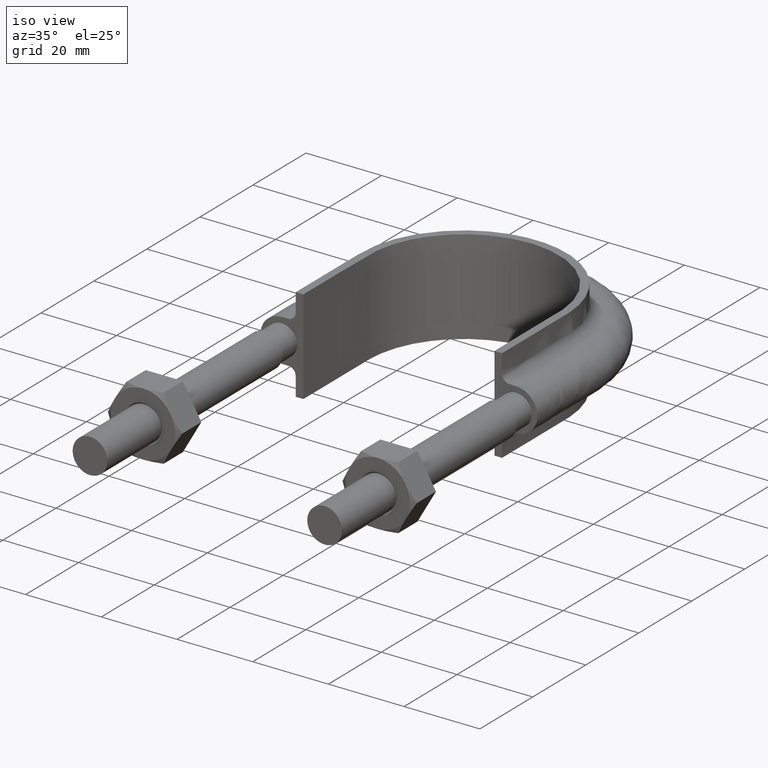
[diagram: clean part render]
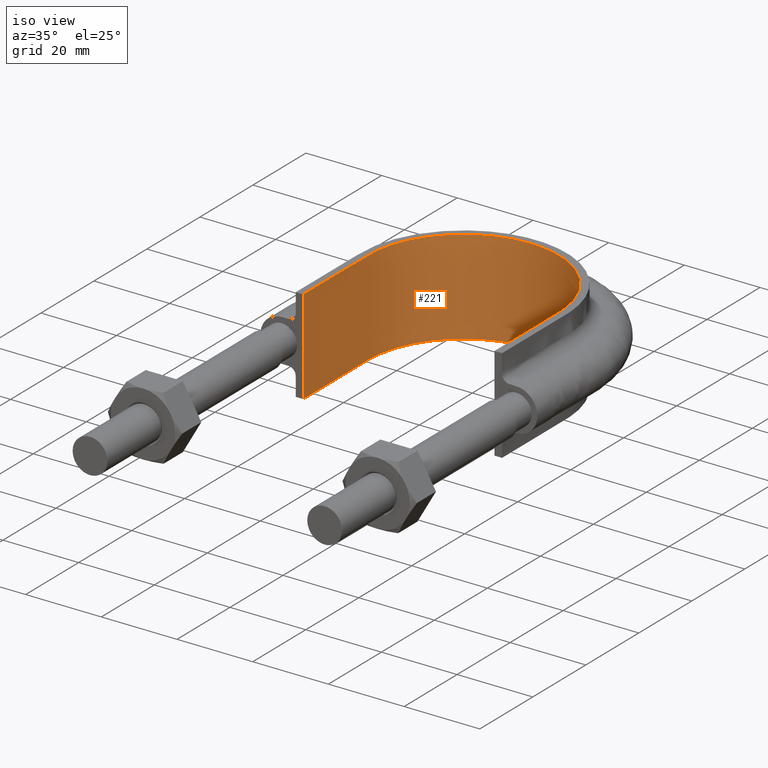
[diagram: same view with one face highlighted and labeled with its STEP entity id]
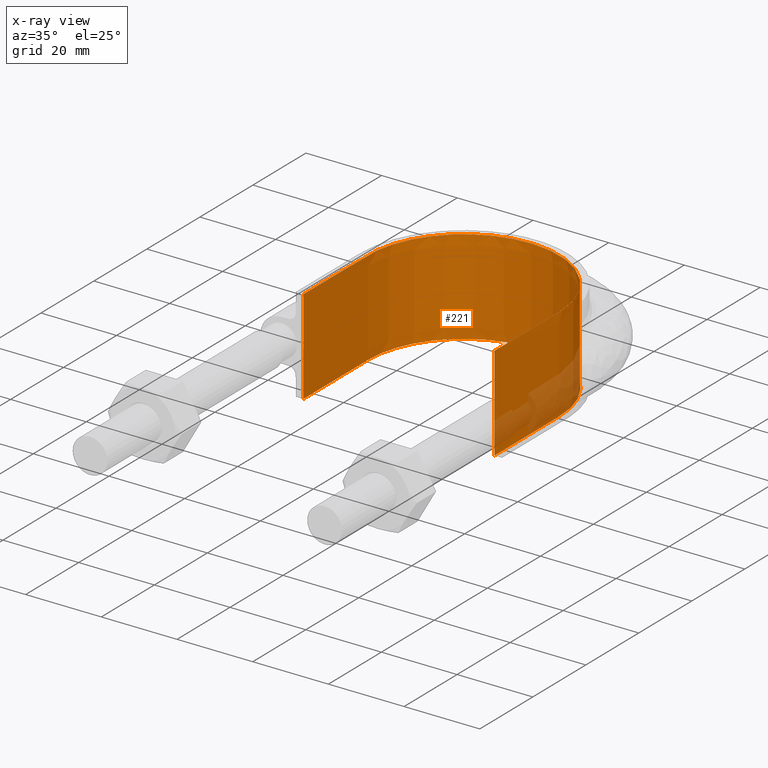
[diagram: x-ray of the same camera — body ghosted, the highlighted face saturated]
A machine part, iso view. The second image highlights one B-rep face of the part: STEP entity #221.
The next image is the same camera in x-ray: the body ghosted, the highlighted face saturated — about 8% of this face is hidden behind the body in this view.
In plain terms, the highlighted face is a SurfaceOfExtrusion surface.
Its self-contained STEP definition (entity closure, byte-faithful):
#221 = ADVANCED_FACE( '', ( #299 ), #300, .T. );
#299 = FACE_OUTER_BOUND( '', #466, .T. );
#300 = SURFACE_OF_LINEAR_EXTRUSION( '', #467, #468 );
#466 = EDGE_LOOP( '', ( #1319, #1320, #1321, #1322 ) );
#467 = B_SPLINE_CURVE_WITH_KNOTS( '', 3, ( #1323, #1324, #1325, #1326, #1327, #1328, #1329, #1330, #1331, #1332, #1333, #1334, #1335, #1336, #1337, #1338, #1339 ), .UNSPECIFIED., .F., .F., ( 4, 3, 1, 1, 1, 1, 1, 1, 1, 3, 4 ), ( -7.90221402214022, -7.00000000000000, -6.50000000000000, -6.00000000000000, -5.00000000000000, -4.00000000000000, -3.00000000000000, -2.00000000000000, -1.50000000000000, -1.00000000000000, -0.0977859778597787 ), .UNSPECIFIED. );
#468 = VECTOR( '', #1340, 1000.00000000000 );
#1319 = ORIENTED_EDGE( '', *, *, #1839, .T. );
#1320 = ORIENTED_EDGE( '', *, *, #1847, .T. );
#1321 = ORIENTED_EDGE( '', *, *, #1844, .F. );
#1322 = ORIENTED_EDGE( '', *, *, #1848, .T. );
#1323 = CARTESIAN_POINT( '', ( 25.2500000000000, 72.3000000000000, 12.5000100000910 ) );
#1324 = CARTESIAN_POINT( '', ( 25.2500000000000, 80.4500000000000, 12.5000100000910 ) );
#1325 = CARTESIAN_POINT( '', ( 25.2500000000000, 88.6000000000000, 12.5000100000910 ) );
#1326 = CARTESIAN_POINT( '', ( 25.2500000000000, 96.7500000000000, 12.5000100000910 ) );
#1327 = CARTESIAN_POINT( '', ( 25.2500000000000, 98.9405239824057, 12.5000100000910 ) );
#1328 = CARTESIAN_POINT( '', ( 24.6577309527694, 103.362448888721, 12.5000100000910 ) );
#1329 = CARTESIAN_POINT( '', ( 21.2781870998223, 111.574710339044, 12.5000100000910 ) );
#1330 = CARTESIAN_POINT( '', ( 13.2147830211088, 119.640362504997, 12.5000100000910 ) );
#1331 = CARTESIAN_POINT( '', ( 1.85541258220415E-014, 123.179818747502, 12.5000100000910 ) );
#1332 = CARTESIAN_POINT( '', ( -13.2147830211087, 119.640362504997, 12.5000100000910 ) );
#1333 = CARTESIAN_POINT( '', ( -21.2781870998223, 111.574710339044, 12.5000100000910 ) );
#1334 = CARTESIAN_POINT( '', ( -24.6577309527694, 103.362448888721, 12.5000100000910 ) );
#1335 = CARTESIAN_POINT( '', ( -25.2500000000000, 98.9405239824057, 12.5000100000910 ) );
#1336 = CARTESIAN_POINT( '', ( -25.2500000000000, 96.7500000000000, 12.5000100000910 ) );
#1337 = CARTESIAN_POINT( '', ( -25.2500000000000, 88.6000000000000, 12.5000100000910 ) );
#1338 = CARTESIAN_POINT( '', ( -25.2500000000000, 80.4500000000000, 12.5000100000910 ) );
#1339 = CARTESIAN_POINT( '', ( -25.2500000000000, 72.3000000000000, 12.5000100000910 ) );
#1340 = DIRECTION( '', ( 0.000000000000000, 0.000000000000000, -1.00000000000000 ) );
#1839 = EDGE_CURVE( '', #1989, #1990, #1991, .T. );
#1844 = EDGE_CURVE( '', #1997, #2000, #2001, .T. );
#1847 = EDGE_CURVE( '', #1990, #2000, #2005, .F. );
#1848 = EDGE_CURVE( '', #1997, #1989, #2006, .T. );
#1989 = VERTEX_POINT( '', #2235 );
#1990 = VERTEX_POINT( '', #2236 );
#1991 = LINE( '', #2237, #2238 );
#1997 = VERTEX_POINT( '', #2276 );
#2000 = VERTEX_POINT( '', #2280 );
#2001 = LINE( '', #2281, #2282 );
#2005 = B_SPLINE_CURVE_WITH_KNOTS( '', 3, ( #2317, #2318, #2319, #2320, #2321, #2322, #2323, #2324, #2325, #2326, #2327, #2328, #2329, #2330, #2331, #2332, #2333 ), .UNSPECIFIED., .F., .F., ( 4, 3, 1, 1, 1, 1, 1, 1, 1, 3, 4 ), ( -7.90221402214022, -7.00000000000000, -6.50000000000000, -6.00000000000000, -5.00000000000000, -4.00000000000000, -3.00000000000000, -2.00000000000000, -1.50000000000000, -1.00000000000000, -0.0977859778597787 ), .UNSPECIFIED. );
#2006 = B_SPLINE_CURVE_WITH_KNOTS( '', 3, ( #2334, #2335, #2336, #2337, #2338, #2339, #2340, #2341, #2342, #2343, #2344, #2345, #2346, #2347, #2348, #2349, #2350, #2351, #2352, #2353, #2354, #2355, #2356, #2357, #2358, #2359, #2360, #2361, #2362, #2363, #2364, #2365, #2366, #2367, #2368, #2369, #2370, #2371, #2372, #2373, #2374, #2375, #2376, #2377, #2378, #2379, #2380, #2381, #2382, #2383, #2384, #2385, #2386, #2387, #2388, #2389, #2390, #2391, #2392, #2393, #2394, #2395, #2396, #2397, #2398, #2399, #2400, #2401, #2402, #2403 ), .UNSPECIFIED., .F., .F., ( 4, 1, 2, 2, 2, 2, 2, 2, 2, 2, 2, 2, 2, 2, 2, 2, 2, 2, 2, 2, 2, 2, 2, 2, 2, 2, 2, 2, 2, 2, 2, 2, 2, 2, 1, 4 ), ( 0.000000000000000, 0.0161147613349207, 0.0241721420023810, 0.0251793145858135, 0.0261864871692461, 0.0282008323361112, 0.0322295226698414, 0.0342438678367065, 0.0362582130035717, 0.0402869033373018, 0.0423012485041670, 0.0443155936710321, 0.0483442840047622, 0.0503586291716273, 0.0523729743384924, 0.0564016646722226, 0.0584160098390877, 0.0604303550059528, 0.0644590453396830, 0.0684877356734133, 0.0725164260071435, 0.0765451163408737, 0.0785594615077388, 0.0805738066746039, 0.0846024970083341, 0.0866168421751992, 0.0886311873420643, 0.0926598776757946, 0.0946742228426597, 0.0966885680095249, 0.100717258343255, 0.102731603510120, 0.103738776093553, 0.104745948676985, 0.112803329344446, 0.128918090679367 ), .UNSPECIFIED. );
#2235 = CARTESIAN_POINT( '', ( -25.2500000000000, 72.3000000000000, 12.5000000000000 ) );
#2236 = CARTESIAN_POINT( '', ( -25.2500000000000, 72.3000000000000, -12.5000000000000 ) );
#2237 = CARTESIAN_POINT( '', ( -25.2500000000000, 72.3000000000000, 12.5000100000910 ) );
#2238 = VECTOR( '', #2878, 1000.00000000000 );
#2276 = CARTESIAN_POINT( '', ( 25.2500000000000, 72.3000000000000, 12.5000000000000 ) );
#2280 = CARTESIAN_POINT( '', ( 25.2500000000000, 72.3000000000000, -12.5000000000000 ) );
#2281 = CARTESIAN_POINT( '', ( 25.2500000000000, 72.3000000000000, 12.5000100000910 ) );
#2282 = VECTOR( '', #2882, 1000.00000000000 );
#2317 = CARTESIAN_POINT( '', ( 25.2500000000000, 72.3000000000000, -12.5000000000000 ) );
#2318 = CARTESIAN_POINT( '', ( 25.2500000000000, 80.4500000000000, -12.5000000000000 ) );
#2319 = CARTESIAN_POINT( '', ( 25.2500000000000, 88.6000000000000, -12.5000000000000 ) );
#2320 = CARTESIAN_POINT( '', ( 25.2500000000000, 96.7500000000000, -12.5000000000000 ) );
#2321 = CARTESIAN_POINT( '', ( 25.2500000000000, 98.9405239824057, -12.5000000000000 ) );
#2322 = CARTESIAN_POINT( '', ( 24.6577309527694, 103.362448888721, -12.5000000000000 ) );
#2323 = CARTESIAN_POINT( '', ( 21.2781870998223, 111.574710339044, -12.5000000000000 ) );
#2324 = CARTESIAN_POINT( '', ( 13.2147830211088, 119.640362504997, -12.5000000000000 ) );
#2325 = CARTESIAN_POINT( '', ( 1.85541258220415E-014, 123.179818747502, -12.5000000000000 ) );
#2326 = CARTESIAN_POINT( '', ( -13.2147830211087, 119.640362504997, -12.5000000000000 ) );
#2327 = CARTESIAN_POINT( '', ( -21.2781870998223, 111.574710339044, -12.5000000000000 ) );
#2328 = CARTESIAN_POINT( '', ( -24.6577309527694, 103.362448888721, -12.5000000000000 ) );
#2329 = CARTESIAN_POINT( '', ( -25.2500000000000, 98.9405239824057, -12.5000000000000 ) );
#2330 = CARTESIAN_POINT( '', ( -25.2500000000000, 96.7500000000000, -12.5000000000000 ) );
#2331 = CARTESIAN_POINT( '', ( -25.2500000000000, 88.6000000000000, -12.5000000000000 ) );
#2332 = CARTESIAN_POINT( '', ( -25.2500000000000, 80.4500000000000, -12.5000000000000 ) );
#2333 = CARTESIAN_POINT( '', ( -25.2500000000000, 72.3000000000000, -12.5000000000000 ) );
#2334 = CARTESIAN_POINT( '', ( 25.2500000000000, 72.3000000000000, 12.5000000000000 ) );
#2335 = CARTESIAN_POINT( '', ( 25.2500000000000, 77.6715895133363, 12.5000000000000 ) );
#2336 = CARTESIAN_POINT( '', ( 25.2500000000000, 85.7289737833406, 12.5000000000000 ) );
#2337 = CARTESIAN_POINT( '', ( 25.2500000000000, 93.7863580533451, 12.5000000000000 ) );
#2338 = CARTESIAN_POINT( '', ( 25.2500000000000, 96.8078771545967, 12.5000000000000 ) );
#2339 = CARTESIAN_POINT( '', ( 25.2491150649023, 97.1436006623561, 12.5000000000000 ) );
#2340 = CARTESIAN_POINT( '', ( 25.2290970638442, 97.8150304218350, 12.5000000000000 ) );
#2341 = CARTESIAN_POINT( '', ( 25.2121935151836, 98.1507925719534, 12.5000000000000 ) );
#2342 = CARTESIAN_POINT( '', ( 25.1416304541618, 99.1523366022387, 12.5000000000000 ) );
#2343 = CARTESIAN_POINT( '', ( 25.0681478926232, 99.8143363579043, 12.5000000000000 ) );
#2344 = CARTESIAN_POINT( '', ( 24.7718338888331, 101.783991218341, 12.5000000000000 ) );
#2345 = CARTESIAN_POINT( '', ( 24.4738662146173, 103.075459204298, 12.5000000000000 ) );
#2346 = CARTESIAN_POINT( '', ( 23.8748800577902, 104.979907306621, 12.5000000000000 ) );
#2347 = CARTESIAN_POINT( '', ( 23.6493715092706, 105.610080322054, 12.5000000000000 ) );
#2348 = CARTESIAN_POINT( '', ( 23.1466852002289, 106.855427933275, 12.5000000000000 ) );
#2349 = CARTESIAN_POINT( '', ( 22.8722634989541, 107.463960740497, 12.5000000000000 ) );
#2350 = CARTESIAN_POINT( '', ( 21.9809247319282, 109.247848149257, 12.5000000000000 ) );
#2351 = CARTESIAN_POINT( '', ( 21.2954434150302, 110.381191138223, 12.5000000000000 ) );
#2352 = CARTESIAN_POINT( '', ( 20.1327216169349, 111.998793076512, 12.5000000000000 ) );
#2353 = CARTESIAN_POINT( '', ( 19.7227502870593, 112.524270087375, 12.5000000000000 ) );
#2354 = CARTESIAN_POINT( '', ( 18.8572951167686, 113.547337069895, 12.5000000000000 ) );
#2355 = CARTESIAN_POINT( '', ( 18.4032128723607, 114.042904154068, 12.5000000000000 ) );
#2356 = CARTESIAN_POINT( '', ( 16.9964012871806, 115.462843239253, 12.5000000000000 ) );
#2357 = CARTESIAN_POINT( '', ( 15.9927974475020, 116.329082564279, 12.5000000000000 ) );
#2358 = CARTESIAN_POINT( '', ( 14.3887252075774, 117.507773024274, 12.5000000000000 ) );
#2359 = CARTESIAN_POINT( '', ( 13.8374893035044, 117.880435213656, 12.5000000000000 ) );
#2360 = CARTESIAN_POINT( '', ( 12.7006376573712, 118.583713251960, 12.5000000000000 ) );
#2361 = CARTESIAN_POINT( '', ( 12.1131960831802, 118.914825635327, 12.5000000000000 ) );
#2362 = CARTESIAN_POINT( '', ( 10.3299183650717, 119.827155647453, 12.5000000000000 ) );
#2363 = CARTESIAN_POINT( '', ( 9.10454318132638, 120.334617775915, 12.5000000000000 ) );
#2364 = CARTESIAN_POINT( '', ( 7.21408375439685, 120.951263101214, 12.5000000000000 ) );
#2365 = CARTESIAN_POINT( '', ( 6.57514143236496, 121.132564627325, 12.5000000000000 ) );
#2366 = CARTESIAN_POINT( '', ( 5.27940659805714, 121.445923942251, 12.5000000000000 ) );
#2367 = CARTESIAN_POINT( '', ( 4.61971700823954, 121.578396874576, 12.5000000000000 ) );
#2368 = CARTESIAN_POINT( '', ( 2.63611969315325, 121.895445145226, 12.5000000000000 ) );
#2369 = CARTESIAN_POINT( '', ( 1.31266002970454, 122.000633761379, 12.5000000000000 ) );
#2370 = CARTESIAN_POINT( '', ( -1.33637517265702, 121.999360539331, 12.5000000000000 ) );
#2371 = CARTESIAN_POINT( '', ( -2.66195040312099, 121.892929555190, 12.5000000000000 ) );
#2372 = CARTESIAN_POINT( '', ( -5.31524513152494, 121.465577087233, 12.5000000000000 ) );
#2373 = CARTESIAN_POINT( '', ( -6.60804809859937, 121.150283396415, 12.5000000000000 ) );
#2374 = CARTESIAN_POINT( '', ( -9.12743285415868, 120.325787539108, 12.5000000000000 ) );
#2375 = CARTESIAN_POINT( '', ( -10.3542818357591, 119.816544006340, 12.5000000000000 ) );
#2376 = CARTESIAN_POINT( '', ( -12.1424796987351, 118.898885074879, 12.5000000000000 ) );
#2377 = CARTESIAN_POINT( '', ( -12.7280055425883, 118.567696458021, 12.5000000000000 ) );
#2378 = CARTESIAN_POINT( '', ( -13.8604800842026, 117.865257648250, 12.5000000000000 ) );
#2379 = CARTESIAN_POINT( '', ( -14.4101186139773, 117.492857299479, 12.5000000000000 ) );
#2380 = CARTESIAN_POINT( '', ( -16.0108457131090, 116.314164980746, 12.5000000000000 ) );
#2381 = CARTESIAN_POINT( '', ( -17.0141423168656, 115.446887726444, 12.5000000000000 ) );
#2382 = CARTESIAN_POINT( '', ( -18.4223735858236, 114.022559707445, 12.5000000000000 ) );
#2383 = CARTESIAN_POINT( '', ( -18.8770948955632, 113.525040411561, 12.5000000000000 ) );
#2384 = CARTESIAN_POINT( '', ( -19.7389494790014, 112.503964569989, 12.5000000000000 ) );
#2385 = CARTESIAN_POINT( '', ( -20.1475791510492, 111.979175524484, 12.5000000000000 ) );
#2386 = CARTESIAN_POINT( '', ( -21.3073074555425, 110.362522952702, 12.5000000000000 ) );
#2387 = CARTESIAN_POINT( '', ( -21.9921630158331, 109.228321351915, 12.5000000000000 ) );
#2388 = CARTESIAN_POINT( '', ( -22.8834304923140, 107.440086844545, 12.5000000000000 ) );
#2389 = CARTESIAN_POINT( '', ( -23.1588924008411, 106.827230115232, 12.5000000000000 ) );
#2390 = CARTESIAN_POINT( '', ( -23.6592299459395, 105.583521009806, 12.5000000000000 ) );
#2391 = CARTESIAN_POINT( '', ( -23.8832275832711, 104.955476341357, 12.5000000000000 ) );
#2392 = CARTESIAN_POINT( '', ( -24.4794340907129, 103.053416991487, 12.5000000000000 ) );
#2393 = CARTESIAN_POINT( '', ( -24.7765070779004, 101.761630829870, 12.5000000000000 ) );
#2394 = CARTESIAN_POINT( '', ( -25.0713912401283, 99.7883013507101, 12.5000000000000 ) );
#2395 = CARTESIAN_POINT( '', ( -25.1443839992401, 99.1245403228044, 12.5000000000000 ) );
#2396 = CARTESIAN_POINT( '', ( -25.2139758381743, 98.1194620904531, 12.5000000000000 ) );
#2397 = CARTESIAN_POINT( '', ( -25.2304218529115, 97.7839664637430, 12.5000000000000 ) );
#2398 = CARTESIAN_POINT( '', ( -25.2495794061181, 97.1133743490591, 12.5000000000000 ) );
#2399 = CARTESIAN_POINT( '', ( -25.2500000000000, 96.7780593381652, 12.5000000000000 ) );
#2400 = CARTESIAN_POINT( '', ( -25.2500000000000, 93.7602164060627, 12.5000000000000 ) );
#2401 = CARTESIAN_POINT( '', ( -25.2500000000000, 85.7126352537892, 12.5000000000000 ) );
#2402 = CARTESIAN_POINT( '', ( -25.2500000000000, 77.6650541015157, 12.5000000000000 ) );
#2403 = CARTESIAN_POINT( '', ( -25.2500000000000, 72.3000000000000, 12.5000000000000 ) );
#2878 = DIRECTION( '', ( 0.000000000000000, 0.000000000000000, -1.00000000000000 ) );
#2882 = DIRECTION( '', ( 0.000000000000000, 0.000000000000000, -1.00000000000000 ) );